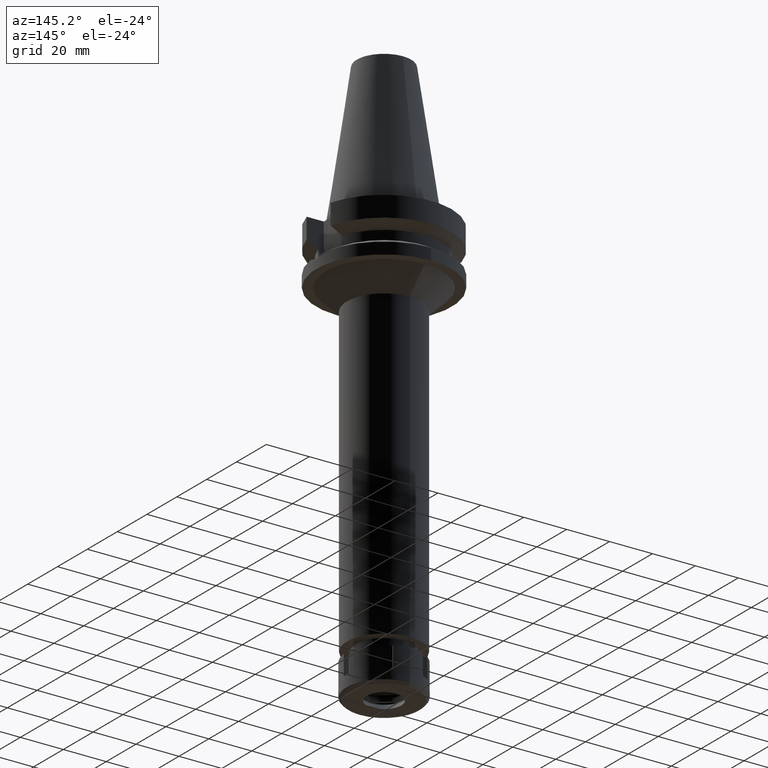
[diagram: clean part render]
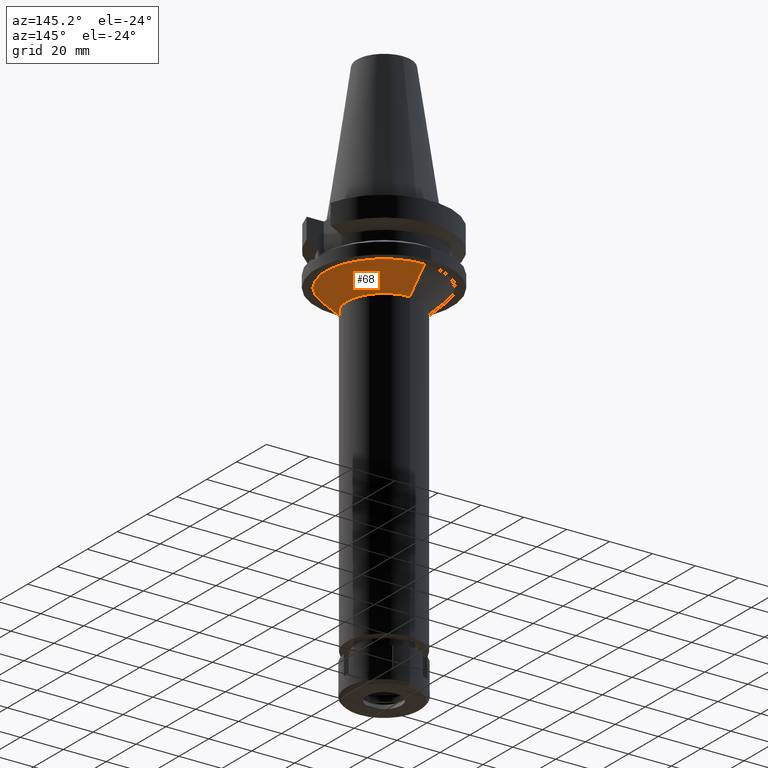
[diagram: same view with one face highlighted and labeled with its STEP entity id]
A machine part, auxiliary view. The second image highlights one B-rep face of the part: STEP entity #68.
In plain terms, the highlighted conical surface has half-angle 45 deg.
Its self-contained STEP definition (entity closure, byte-faithful):
#68 = ADVANCED_FACE ( 'NONE', ( #1985 ), #2287, .T. ) ;
#145 = ORIENTED_EDGE ( 'NONE', *, *, #1989, .T. ) ;
#150 = VERTEX_POINT ( 'NONE', #466 ) ;
#210 = CARTESIAN_POINT ( 'NONE',  ( 0.0000000000000000000, -27.25000000000000000, -27.00000000000000000 ) ) ;
#427 = DIRECTION ( 'NONE',  ( 0.0000000000000000000, 0.0000000000000000000, -1.000000000000000000 ) ) ;
#464 = VECTOR ( 'NONE', #3310, 1000.000000000000114 ) ;
#466 = CARTESIAN_POINT ( 'NONE',  ( 0.0000000000000000000, -27.25000000000000000, -27.00000000000000000 ) ) ;
#554 = CARTESIAN_POINT ( 'NONE',  ( 0.0000000000000000000, -17.25000000000000000, -37.00000000000000000 ) ) ;
#744 = EDGE_CURVE ( 'NONE', #150, #847, #2142, .T. ) ;
#847 = VERTEX_POINT ( 'NONE', #554 ) ;
#904 = DIRECTION ( 'NONE',  ( 0.0000000000000000000, 0.0000000000000000000, -1.000000000000000000 ) ) ;
#999 = CARTESIAN_POINT ( 'NONE',  ( 0.0000000000000000000, 27.25000000000000000, -27.00000000000000000 ) ) ;
#1023 = DIRECTION ( 'NONE',  ( 0.0000000000000000000, 1.000000000000000000, 0.0000000000000000000 ) ) ;
#1144 = DIRECTION ( 'NONE',  ( 0.0000000000000000000, 1.000000000000000000, 0.0000000000000000000 ) ) ;
#1177 = AXIS2_PLACEMENT_3D ( 'NONE', #2907, #1503, #1144 ) ;
#1299 = CIRCLE ( 'NONE', #2700, 17.25000000000000000 ) ;
#1402 = ORIENTED_EDGE ( 'NONE', *, *, #2140, .F. ) ;
#1449 = CARTESIAN_POINT ( 'NONE',  ( 0.0000000000000000000, 0.0000000000000000000, -37.00000000000000000 ) ) ;
#1463 = VECTOR ( 'NONE', #1898, 1000.000000000000114 ) ;
#1470 = AXIS2_PLACEMENT_3D ( 'NONE', #2176, #427, #1023 ) ;
#1503 = DIRECTION ( 'NONE',  ( 0.0000000000000000000, 0.0000000000000000000, 1.000000000000000000 ) ) ;
#1604 = EDGE_CURVE ( 'NONE', #2022, #847, #1299, .T. ) ;
#1898 = DIRECTION ( 'NONE',  ( 0.0000000000000000000, 0.7071067811865474617, -0.7071067811865474617 ) ) ;
#1963 = LINE ( 'NONE', #2764, #464 ) ;
#1973 = ORIENTED_EDGE ( 'NONE', *, *, #1604, .F. ) ;
#1985 = FACE_OUTER_BOUND ( 'NONE', #2520, .T. ) ;
#1989 = EDGE_CURVE ( 'NONE', #2493, #150, #3510, .T. ) ;
#2022 = VERTEX_POINT ( 'NONE', #3546 ) ;
#2140 = EDGE_CURVE ( 'NONE', #2493, #2022, #1963, .T. ) ;
#2142 = LINE ( 'NONE', #210, #1463 ) ;
#2176 = CARTESIAN_POINT ( 'NONE',  ( 0.0000000000000000000, 0.0000000000000000000, -27.00000000000000000 ) ) ;
#2271 = DIRECTION ( 'NONE',  ( 0.0000000000000000000, 1.000000000000000000, 0.0000000000000000000 ) ) ;
#2287 = CONICAL_SURFACE ( 'NONE', #1177, 22.25000000000000000, 0.7853981633972997312 ) ;
#2493 = VERTEX_POINT ( 'NONE', #999 ) ;
#2520 = EDGE_LOOP ( 'NONE', ( #145, #3308, #1973, #1402 ) ) ;
#2700 = AXIS2_PLACEMENT_3D ( 'NONE', #1449, #904, #2271 ) ;
#2764 = CARTESIAN_POINT ( 'NONE',  ( 0.0000000000000000000, 27.25000000000000000, -27.00000000000000000 ) ) ;
#2907 = CARTESIAN_POINT ( 'NONE',  ( 0.0000000000000000000, 0.0000000000000000000, -32.00000000000000000 ) ) ;
#3308 = ORIENTED_EDGE ( 'NONE', *, *, #744, .T. ) ;
#3310 = DIRECTION ( 'NONE',  ( 0.0000000000000000000, -0.7071067811865474617, -0.7071067811865474617 ) ) ;
#3510 = CIRCLE ( 'NONE', #1470, 27.25000000000000000 ) ;
#3546 = CARTESIAN_POINT ( 'NONE',  ( 0.0000000000000000000, 17.25000000000000000, -37.00000000000000000 ) ) ;